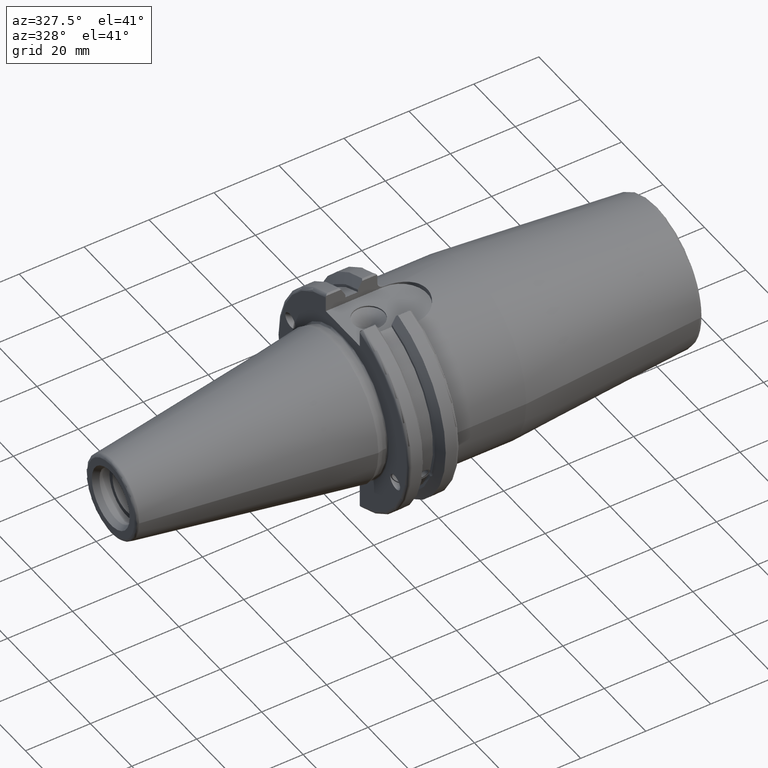
[diagram: clean part render]
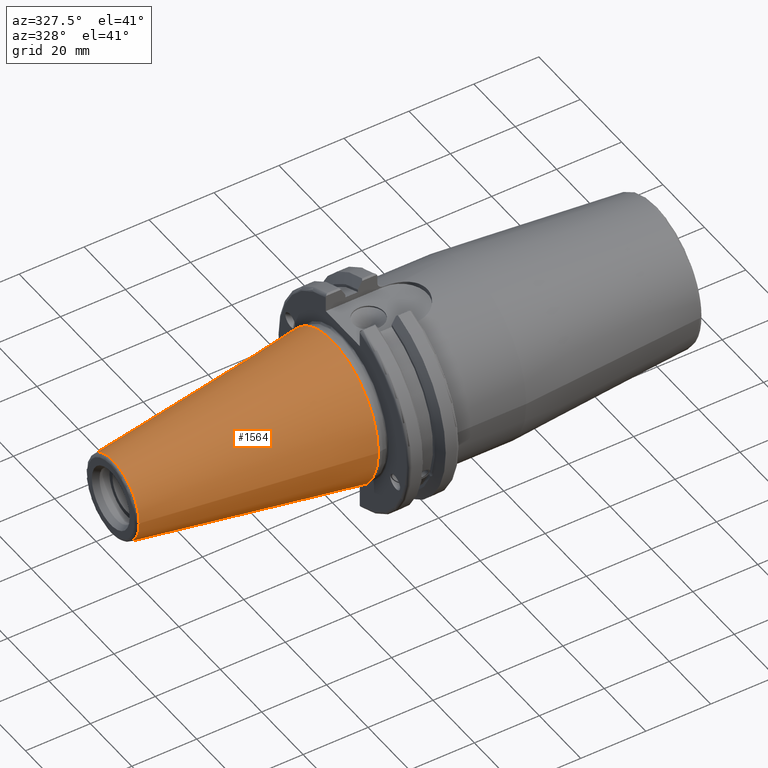
[diagram: same view with one face highlighted and labeled with its STEP entity id]
A machine part, auxiliary view. The second image highlights one B-rep face of the part: STEP entity #1564.
In plain terms, the highlighted conical surface has half-angle 8.297 deg.
Its self-contained STEP definition (entity closure, byte-faithful):
#105=CONICAL_SURFACE('',#1756,17.2484375,0.144812498238939);
#182=FACE_OUTER_BOUND('',#282,.T.);
#282=EDGE_LOOP('',(#1352,#1353,#1354,#1355,#1356));
#368=CIRCLE('',#1750,12.3966635780937);
#369=CIRCLE('',#1751,12.3966635780937);
#373=CIRCLE('',#1757,22.225);
#455=LINE('',#3052,#541);
#541=VECTOR('',#2157,17.2484375);
#742=VERTEX_POINT('',#3039);
#743=VERTEX_POINT('',#3040);
#746=VERTEX_POINT('',#3050);
#960=EDGE_CURVE('',#742,#743,#368,.T.);
#961=EDGE_CURVE('',#743,#742,#369,.T.);
#965=EDGE_CURVE('',#746,#746,#373,.T.);
#966=EDGE_CURVE('',#746,#743,#455,.T.);
#1352=ORIENTED_EDGE('',*,*,#965,.F.);
#1353=ORIENTED_EDGE('',*,*,#966,.T.);
#1354=ORIENTED_EDGE('',*,*,#960,.F.);
#1355=ORIENTED_EDGE('',*,*,#961,.F.);
#1356=ORIENTED_EDGE('',*,*,#966,.F.);
#1564=ADVANCED_FACE('',(#182),#105,.T.);
#1750=AXIS2_PLACEMENT_3D('',#3041,#2141,#2142);
#1751=AXIS2_PLACEMENT_3D('',#3042,#2143,#2144);
#1756=AXIS2_PLACEMENT_3D('',#3049,#2153,#2154);
#1757=AXIS2_PLACEMENT_3D('',#3051,#2155,#2156);
#2141=DIRECTION('center_axis',(-1.,0.,0.));
#2142=DIRECTION('ref_axis',(0.,-1.,3.06161699786838E-17));
#2143=DIRECTION('center_axis',(-1.,0.,0.));
#2144=DIRECTION('ref_axis',(0.,-1.,3.06161699786838E-17));
#2153=DIRECTION('center_axis',(1.,0.,0.));
#2154=DIRECTION('ref_axis',(0.,1.,0.));
#2155=DIRECTION('center_axis',(1.,0.,0.));
#2156=DIRECTION('ref_axis',(0.,0.,-1.));
#2157=DIRECTION('',(-0.989532981063282,0.144306893071729,1.76724974695192E-17));
#3039=CARTESIAN_POINT('',(-67.3943068930717,-1.5181534371019E-15,12.3966635780937));
#3040=CARTESIAN_POINT('',(-67.3943068930718,-12.3966635780937,-1.5181534371019E-15));
#3041=CARTESIAN_POINT('Origin',(-67.3943068930717,0.,-1.89769179637738E-15));
#3042=CARTESIAN_POINT('Origin',(-67.3943068930717,0.,-1.89769179637738E-15));
#3049=CARTESIAN_POINT('Origin',(-34.125,0.,0.));
#3050=CARTESIAN_POINT('',(0.,-22.225,-2.72177751110499E-15));
#3051=CARTESIAN_POINT('Origin',(0.,0.,0.));
#3052=CARTESIAN_POINT('',(-34.125,-17.2484375,-2.11232437746682E-15));